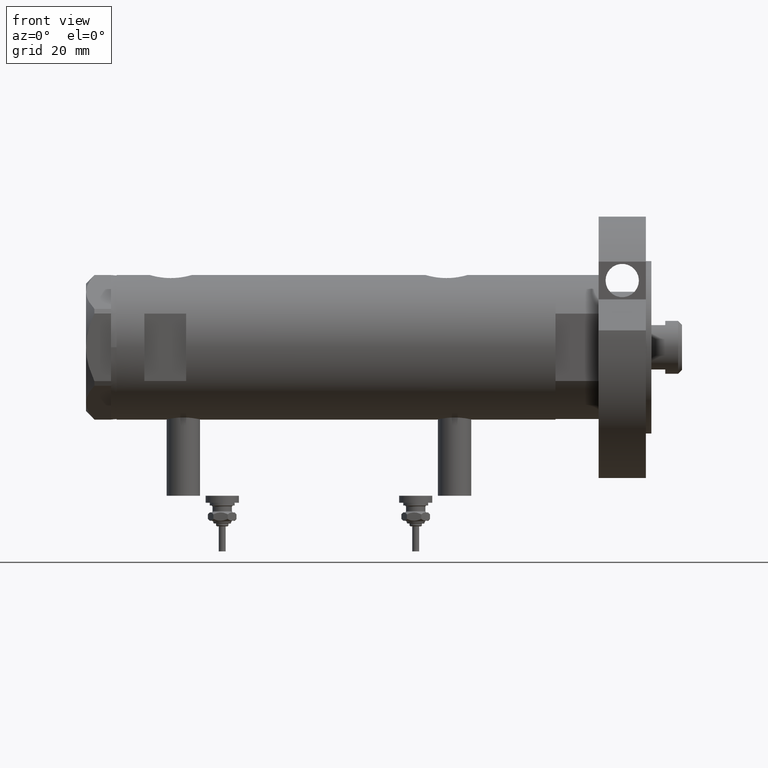
[diagram: clean part render]
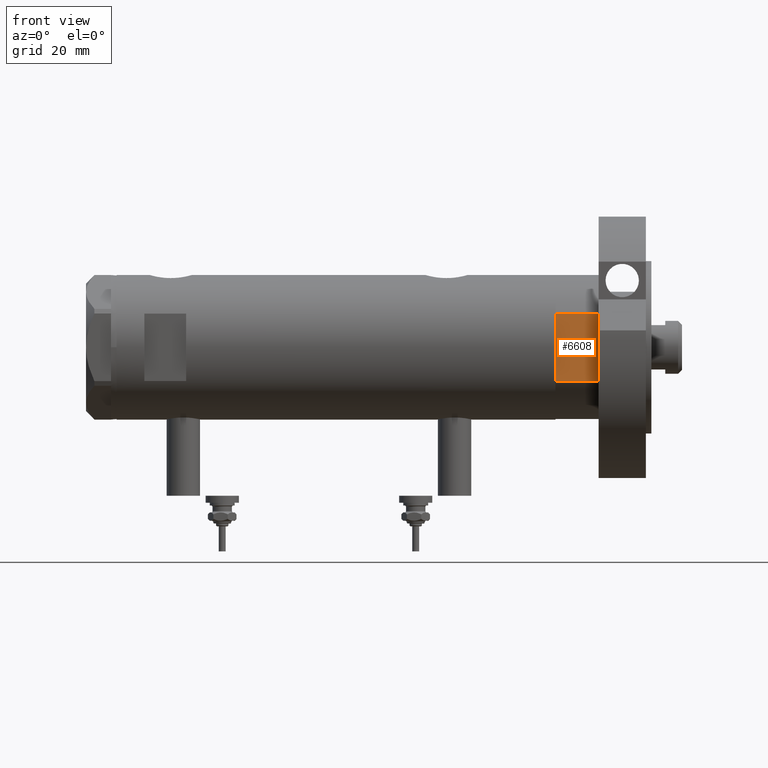
[diagram: same view with one face highlighted and labeled with its STEP entity id]
A machine part, front view. The second image highlights one B-rep face of the part: STEP entity #6608.
In plain terms, the highlighted planar face has unit normal (-0, 1, 0).
Its self-contained STEP definition (entity closure, byte-faithful):
#240 = ORIENTED_EDGE ( 'NONE', *, *, #4154, .F. ) ;
#255 = PLANE ( 'NONE',  #7198 ) ;
#302 = FACE_OUTER_BOUND ( 'NONE', #893, .T. ) ;
#579 = EDGE_CURVE ( 'NONE', #4381, #1721, #1122, .T. ) ;
#587 = ORIENTED_EDGE ( 'NONE', *, *, #6429, .F. ) ;
#752 = VERTEX_POINT ( 'NONE', #4681 ) ;
#893 = EDGE_LOOP ( 'NONE', ( #7473, #587, #240, #5356 ) ) ;
#945 = DIRECTION ( 'NONE',  ( 0.000000000000000000, -0.000000000000000000, 1.000000000000000000 ) ) ;
#1122 = LINE ( 'NONE', #5936, #5990 ) ;
#1138 = CARTESIAN_POINT ( 'NONE',  ( 12.12435565298215323, -22.99999999999999645, 0.000000000000000000 ) ) ;
#1140 = VECTOR ( 'NONE', #3644, 1000.000000000000000 ) ;
#1389 = VECTOR ( 'NONE', #2119, 1000.000000000000000 ) ;
#1561 = DIRECTION ( 'NONE',  ( -0.000000000000000000, 1.000000000000000000, 0.000000000000000000 ) ) ;
#1721 = VERTEX_POINT ( 'NONE', #4761 ) ;
#2119 = DIRECTION ( 'NONE',  ( -1.000000000000000000, -0.000000000000000000, -0.000000000000000000 ) ) ;
#2161 = CARTESIAN_POINT ( 'NONE',  ( -12.12435565298215145, -22.99999999999999645, 0.000000000000000000 ) ) ;
#2972 = CARTESIAN_POINT ( 'NONE',  ( 12.12435565298215323, -22.99999999999999645, 15.50000000000000000 ) ) ;
#3228 = CARTESIAN_POINT ( 'NONE',  ( -12.12435565298215145, -22.99999999999999645, 0.000000000000000000 ) ) ;
#3562 = CARTESIAN_POINT ( 'NONE',  ( -12.12435565298215145, -22.99999999999999645, 0.000000000000000000 ) ) ;
#3597 = DIRECTION ( 'NONE',  ( -1.000000000000000000, -0.000000000000000000, -0.000000000000000000 ) ) ;
#3644 = DIRECTION ( 'NONE',  ( -0.000000000000000000, -0.000000000000000000, 1.000000000000000000 ) ) ;
#3856 = EDGE_CURVE ( 'NONE', #6598, #4381, #6029, .T. ) ;
#4154 = EDGE_CURVE ( 'NONE', #6598, #752, #5166, .T. ) ;
#4238 = VECTOR ( 'NONE', #6020, 1000.000000000000000 ) ;
#4381 = VERTEX_POINT ( 'NONE', #2972 ) ;
#4681 = CARTESIAN_POINT ( 'NONE',  ( -12.12435565298215501, -22.99999999999999645, 0.000000000000000000 ) ) ;
#4761 = CARTESIAN_POINT ( 'NONE',  ( -12.12435565298215323, -22.99999999999999645, 15.50000000000000000 ) ) ;
#5166 = LINE ( 'NONE', #3228, #1389 ) ;
#5356 = ORIENTED_EDGE ( 'NONE', *, *, #3856, .T. ) ;
#5936 = CARTESIAN_POINT ( 'NONE',  ( -12.12435565298215145, -22.99999999999999645, 15.50000000000000000 ) ) ;
#5990 = VECTOR ( 'NONE', #3597, 1000.000000000000000 ) ;
#6020 = DIRECTION ( 'NONE',  ( -0.000000000000000000, -0.000000000000000000, 1.000000000000000000 ) ) ;
#6029 = LINE ( 'NONE', #1138, #1140 ) ;
#6387 = CARTESIAN_POINT ( 'NONE',  ( 12.12435565298215323, -22.99999999999999645, 0.000000000000000000 ) ) ;
#6429 = EDGE_CURVE ( 'NONE', #752, #1721, #7115, .T. ) ;
#6598 = VERTEX_POINT ( 'NONE', #6387 ) ;
#6608 = ADVANCED_FACE ( 'NONE', ( #302 ), #255, .F. ) ;
#7115 = LINE ( 'NONE', #3562, #4238 ) ;
#7198 = AXIS2_PLACEMENT_3D ( 'NONE', #2161, #1561, #945 ) ;
#7473 = ORIENTED_EDGE ( 'NONE', *, *, #579, .T. ) ;